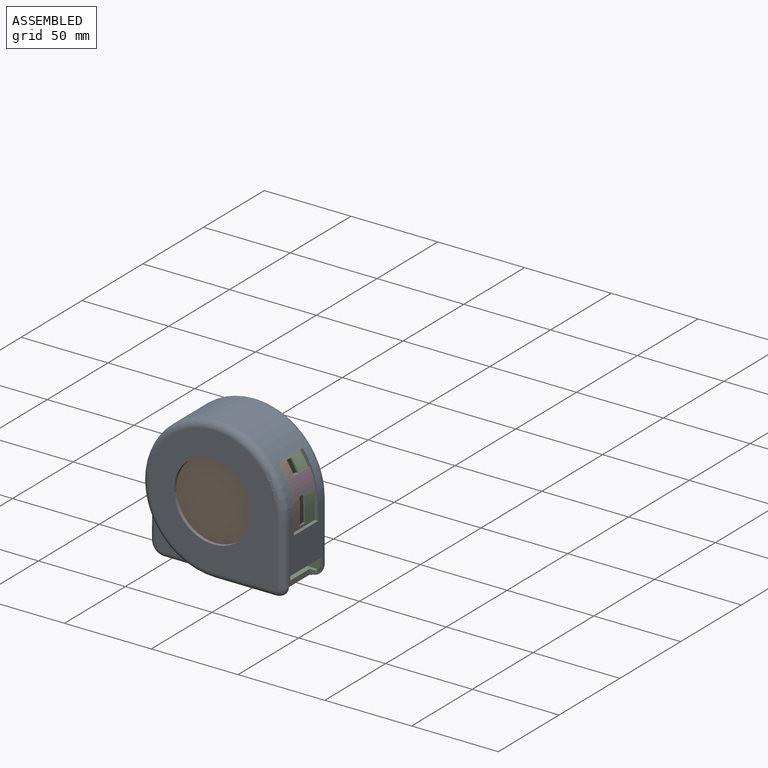
[diagram: assembled view]
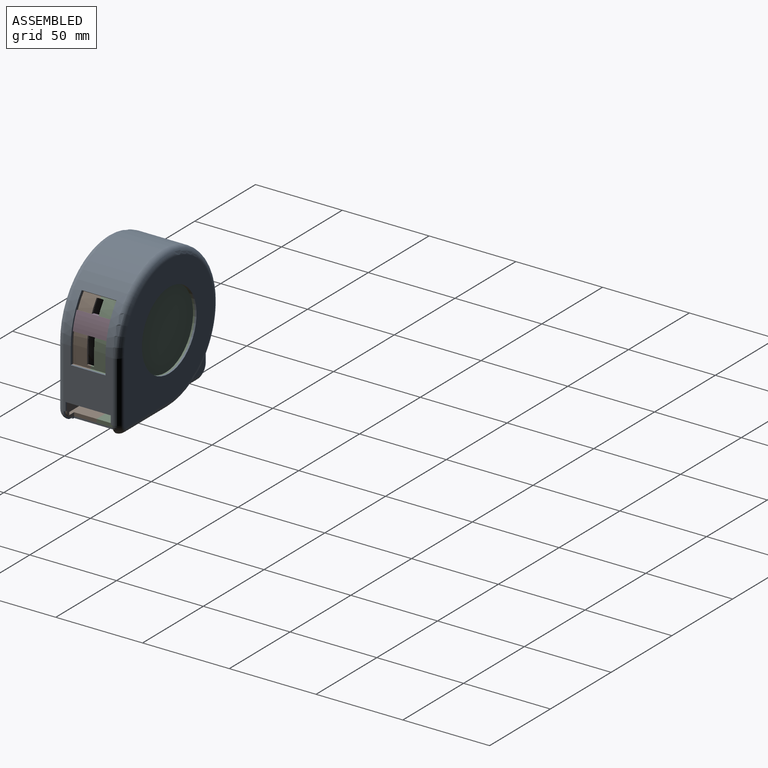
[diagram: assembled view, second angle]
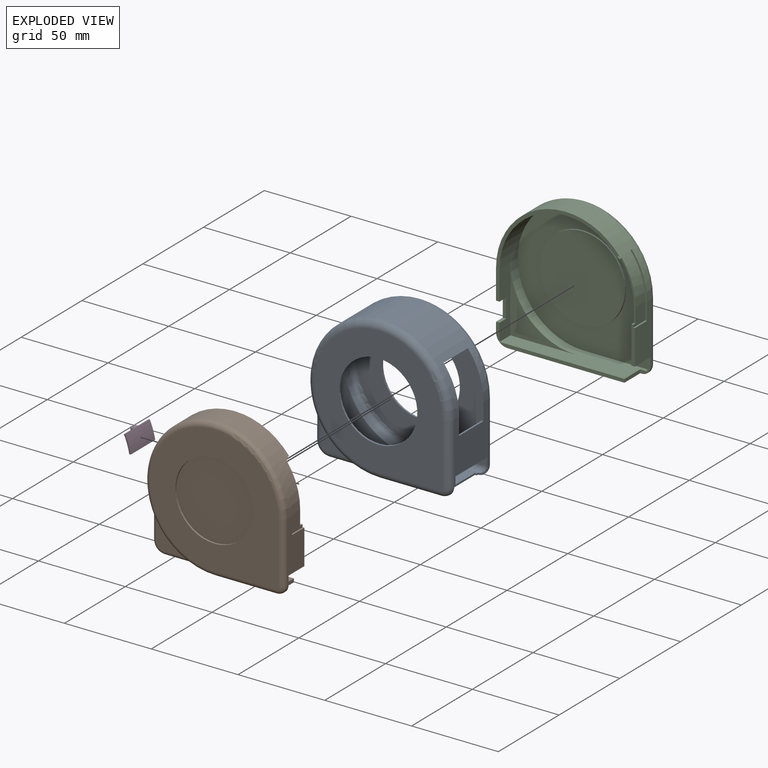
[diagram: exploded view]
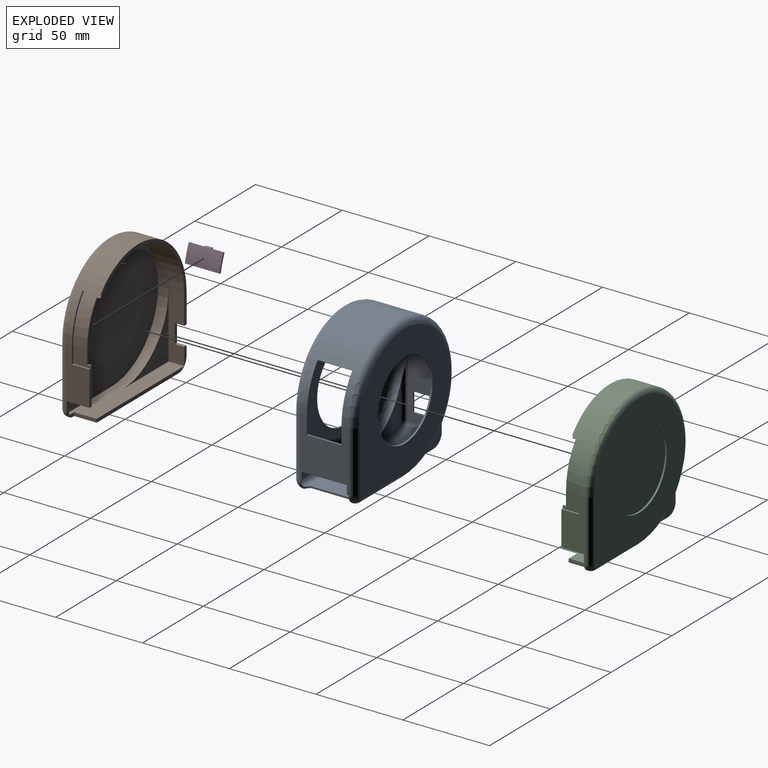
[diagram: exploded view, second angle]
ASSEMBLY  parts=4 mates=3
PART A: 68 faces, bbox 88.8x36x88.8 mm
  f0: plane 6x6mm, normal (0,-1,0), area 8.6mm2, adj f1,f12,f23,f37
  f1: plane 1x1mm, normal (1,0,0), area 1mm2, adj f0,f2,f25,f39
  f2: plane 1x1mm, normal (0,-1,0), area 1mm2, adj f1,f3,f25,f39
  f3: plane 26x1mm, normal (1,0,0), area 26mm2, adj f2,f25,f39,f44
  f4: plane 11x1mm, normal (0,0,1), area 11mm2, adj f5,f16,f30,f45
  f5: plane 11x1mm, normal (0,-1,0), area 11mm2, adj f4,f6,f16,f30
  f6: plane 11x1mm, normal (0,0,-1), area 11mm2, adj f5,f16,f30,f45
  f7: plane 20x0.78mm, normal (0.62,0,-0.78), area 20mm2, adj f8,f26,f40,f46
  f8: plane 35.63x9.78mm, normal (0,-1,0), area 37.3mm2, adj f7,f9,f21,f26,f35,f40
  f9: plane 20x1mm, normal (0,0,1), area 20mm2, adj f8,f21,f35,f46
  f10: plane 26x1mm, normal (0,0,-1), area 26mm2, adj f11,f21,f35,f47
  f11: plane 5x1mm, normal (0,-1,0), area 5mm2, adj f10,f12,f21,f35
  f12: plane 1x1mm, normal (0,0,-1), area 1mm2, adj f0,f11,f21,f35
  f13: cylinder r=22.5mm len=45mm, axis (0,1,0), area 141.4mm2, adj f14,f28
  f14: plane 74x74mm, normal (0,1,0), area 3003.3mm2, adj f13,f22,f23,f24,f27
  f15: cylinder r=7.7mm len=17.2mm, axis (0,1,0), area 208mm2, adj f16,f18,f25,f52
  f16: plane 33.3x17.2mm, normal (-1,0,0), area 451.8mm2, adj f4,f5,f6,f15,f19,f26,f45,f53
  f17: cylinder r=3.4mm len=33.3mm, axis (1,0,0), area 131.3mm2, adj f18,f20,f25,f26
  f18: torus R=4.3mm, axis (0,1,0), area 54.2mm2, adj f15,f17,f19,f20
  f19: cylinder r=3.4mm len=33.3mm, axis (0,0,-1), area 131.3mm2, adj f16,f18,f20,f26
  f20: plane 21.25x21.25mm, normal (0,1,0), area 164.3mm2, adj f17,f18,f19,f26
  f21: plane 35x28mm, normal (1,0,0), area 650mm2, adj f8,f9,f10,f11,f12,f22,f26,f46
  f22: cylinder r=4mm len=35mm, axis (0,0,1), area 219.9mm2, adj f14,f21,f23,f27
  f23: torus R=2mm, axis (0,1,0), area 44.9mm2, adj f0,f14,f22,f24
  f24: cylinder r=4mm len=35mm, axis (1,0,0), area 219.9mm2, adj f14,f23,f25,f27
  f25: plane 68.3x28mm, normal (0,0,-1), area 1526.8mm2, adj f1,f2,f3,f15,f17,f24,f26,f43
  f26: cylinder r=41mm len=82mm, axis (0,1,0), area 3399.4mm2, adj f7,f8,f16,f17,f19,f20,f21,f25
  f27: torus R=37mm, axis (0,1,0), area 1170.9mm2, adj f14,f22,f24,f26
  f28: plane 74x74mm, normal (0,-1,0), area 3003.3mm2, adj f13,f36,f37,f38,f41
  f29: cylinder r=6.7mm len=17.2mm, axis (0,1,0), area 181mm2, adj f30,f32,f39,f61
  f30: plane 33.3x17.2mm, normal (1,0,0), area 451.8mm2, adj f4,f5,f6,f29,f33,f40,f45,f62
  f31: cylinder r=2.4mm len=33.3mm, axis (1,0,0), area 98.2mm2, adj f32,f34,f39,f40
  f32: torus R=4.3mm, axis (0,1,0), area 34.5mm2, adj f29,f31,f33,f34
  f33: cylinder r=2.4mm len=33.3mm, axis (0,0,-1), area 98.2mm2, adj f30,f32,f34,f40
  f34: plane 23.95x23.95mm, normal (0,-1,0), area 197.1mm2, adj f31,f32,f33,f40
  f35: plane 35x28mm, normal (-1,0,0), area 650mm2, adj f8,f9,f10,f11,f12,f36,f40,f46
  f36: cylinder r=3mm len=35mm, axis (0,0,1), area 164.9mm2, adj f28,f35,f37,f41
  f37: torus R=2mm, axis (0,1,0), area 28.9mm2, adj f0,f28,f36,f38
  f38: cylinder r=3mm len=35mm, axis (1,0,0), area 164.9mm2, adj f28,f37,f39,f41
  f39: plane 68.3x28mm, normal (0,0,1), area 1526.8mm2, adj f1,f2,f3,f29,f31,f38,f40,f43
  f40: cylinder r=40mm len=80mm, axis (0,1,0), area 3407.5mm2, adj f7,f8,f30,f31,f33,f34,f35,f39
  f41: torus R=37mm, axis (0,1,0), area 864.1mm2, adj f28,f36,f38,f40
  f42: plane 6x6mm, normal (0,1,0), area 8.6mm2, adj f43,f48,f56,f65
  f43: plane 1x1mm, normal (1,0,0), area 1mm2, adj f25,f39,f42,f44
  f44: plane 1x1mm, normal (0,1,0), area 1mm2, adj f3,f25,f39,f43
  f45: plane 11x1mm, normal (0,1,0), area 11mm2, adj f4,f6,f16,f30
  f46: plane 35.63x9.78mm, normal (0,1,0), area 37.3mm2, adj f7,f9,f21,f26,f35,f40
  f47: plane 5x1mm, normal (0,1,0), area 5mm2, adj f10,f21,f35,f48
  f48: plane 1x1mm, normal (0,0,-1), area 1mm2, adj f21,f35,f42,f47
  f49: cylinder r=22.5mm len=45mm, axis (0,-1,0), area 141.4mm2, adj f50,f59
  f50: plane 74x74mm, normal (0,-1,0), area 3003.3mm2, adj f49,f55,f56,f57,f58
  f51: cylinder r=3.4mm len=33.3mm, axis (1,0,0), area 131.3mm2, adj f25,f26,f52,f54
  f52: torus R=4.3mm, axis (0,-1,0), area 54.2mm2, adj f15,f51,f53,f54
  f53: cylinder r=3.4mm len=33.3mm, axis (0,0,-1), area 131.3mm2, adj f16,f26,f52,f54
  f54: plane 21.25x21.25mm, normal (0,-1,0), area 164.3mm2, adj f26,f51,f52,f53
  f55: cylinder r=4mm len=35mm, axis (0,0,1), area 219.9mm2, adj f21,f50,f56,f58
  f56: torus R=2mm, axis (0,-1,0), area 44.9mm2, adj f42,f50,f55,f57
  f57: cylinder r=4mm len=35mm, axis (1,0,0), area 219.9mm2, adj f25,f50,f56,f58
  f58: torus R=37mm, axis (0,-1,0), area 1170.9mm2, adj f26,f50,f55,f57
  f59: plane 74x74mm, normal (0,1,0), area 3003.3mm2, adj f49,f64,f65,f66,f67
  f60: cylinder r=2.4mm len=33.3mm, axis (1,0,0), area 98.2mm2, adj f39,f40,f61,f63
  f61: torus R=4.3mm, axis (0,-1,0), area 34.5mm2, adj f29,f60,f62,f63
  f62: cylinder r=2.4mm len=33.3mm, axis (0,0,-1), area 98.2mm2, adj f30,f40,f61,f63
  f63: plane 23.95x23.95mm, normal (0,1,0), area 197.1mm2, adj f40,f60,f61,f62
  f64: cylinder r=3mm len=35mm, axis (0,0,1), area 164.9mm2, adj f35,f59,f65,f67
  f65: torus R=2mm, axis (0,-1,0), area 28.9mm2, adj f42,f59,f64,f66
  f66: cylinder r=3mm len=35mm, axis (1,0,0), area 164.9mm2, adj f39,f59,f65,f67
  f67: torus R=37mm, axis (0,-1,0), area 864.1mm2, adj f40,f59,f64,f66
PART B: 42 faces, bbox 86.6x17x86.6 mm
  f0: plane 74x74mm, normal (0,-1,0), area 3003.3mm2, adj f12,f20,f21,f22,f41
  f1: plane 71.23x57mm, normal (0,1,0), area 226.7mm2, adj f2,f3,f5,f15,f29,f30,f34,f37
  f2: plane 33.3x8.6mm, normal (-1,0,0), area 225.9mm2, adj f1,f4,f5,f19,f23,f37,f38,f39
  f3: plane 38x9mm, normal (1,0,0), area 281.5mm2, adj f1,f4,f9,f15,f16,f37,f38,f39
  f4: plane 74x12mm, normal (0,1,0), area 158.4mm2, adj f2,f3,f7,f9,f19,f26,f38
  f5: cylinder r=40mm len=80mm, axis (0,-1,0), area 1703.8mm2, adj f1,f2,f6,f7,f11,f20,f23,f24
  f6: plane 35x14mm, normal (1,0,0), area 325mm2, adj f5,f8,f21,f27,f28,f31,f33,f40
  f7: plane 68.3x14mm, normal (0,0,-1), area 763.4mm2, adj f4,f5,f19,f22,f24,f26,f28,f40
  f8: plane 21.5x2mm, normal (0,1,0), area 41.5mm2, adj f6,f10,f27,f31,f32,f36
  f9: plane 76x15mm, normal (0,0,1), area 860mm2, adj f3,f4,f10,f14,f15,f16,f26,f28
  f10: plane 38x15mm, normal (-1,0,0), area 449mm2, adj f8,f9,f14,f15,f27,f28,f35,f36
  f11: plane 23.95x23.95mm, normal (0,-1,0), area 197.1mm2, adj f5,f23,f24,f25
  f12: cylinder r=22.5mm len=45mm, axis (0,-1,0), area 141.4mm2, adj f0,f13
  f13: plane 45x45mm, normal (0,-1,0), area 1590.4mm2, adj f12
  f14: plane 76x76mm, normal (0,1,0), area 2960.6mm2, adj f9,f10,f15,f17
  f15: cylinder r=38mm len=76mm, axis (0,-1,0), area 2098.2mm2, adj f1,f3,f9,f10,f14,f16,f34,f35
  f16: plane 38x38mm, normal (0,1,0), area 309.9mm2, adj f3,f9,f15
  f17: cylinder r=24.5mm len=49mm, axis (0,-1,0), area 153.9mm2, adj f14,f18
  f18: plane 49x49mm, normal (0,1,0), area 1885.7mm2, adj f17
  f19: cylinder r=6.7mm len=8.6mm, axis (0,-1,0), area 90.5mm2, adj f2,f4,f7,f25
  f20: torus R=37mm, axis (0,-1,0), area 864.1mm2, adj f0,f5,f21,f22
  f21: cylinder r=3mm len=35mm, axis (0,0,1), area 164.9mm2, adj f0,f6,f20,f41
  f22: cylinder r=3mm len=35mm, axis (1,0,0), area 164.9mm2, adj f0,f7,f20,f41
  f23: cylinder r=2.4mm len=33.3mm, axis (0,0,-1), area 98.2mm2, adj f2,f5,f11,f25
  f24: cylinder r=2.4mm len=33.3mm, axis (1,0,0), area 98.2mm2, adj f5,f7,f11,f25
  f25: torus R=4.3mm, axis (0,-1,0), area 34.5mm2, adj f11,f19,f23,f24
  f26: plane 13x2mm, normal (1,0,0), area 26mm2, adj f4,f7,f9,f28
  f27: plane 13x2mm, normal (0,0,-1), area 26mm2, adj f6,f8,f10,f28
  f28: plane 10x6mm, normal (0,1,0), area 22.6mm2, adj f6,f7,f9,f10,f26,f27,f40
  f29: cylinder r=39mm len=25mm, axis (0,1,0), area 220.9mm2, adj f1,f30,f32,f33,f34,f35
  f30: plane 10x1.29mm, normal (0,0,-1), area 12.9mm2, adj f1,f5,f29,f33
  f31: plane 10x1mm, normal (0,0,1), area 10mm2, adj f6,f8,f32,f33
  f32: plane 10x10mm, normal (1,0,0), area 83mm2, adj f8,f29,f31,f33,f35,f36
  f33: plane 35x10.07mm, normal (0,1,0), area 37.1mm2, adj f5,f6,f29,f30,f31,f32
  f34: plane 2x1.26mm, normal (0,0,-1), area 2.5mm2, adj f1,f15,f29,f35
  f35: plane 32x9.14mm, normal (0,1,0), area 33.8mm2, adj f10,f15,f29,f32,f34,f36
  f36: plane 2x1mm, normal (0,0,1), area 2mm2, adj f8,f10,f32,f35
  f37: plane 5.5x2mm, normal (0,0,-1), area 11mm2, adj f1,f2,f3,f39
  f38: plane 5.5x2mm, normal (0,0,1), area 11mm2, adj f2,f3,f4,f39
  f39: plane 11x2mm, normal (0,1,0), area 22mm2, adj f2,f3,f37,f38
  f40: cylinder r=5mm len=5mm, axis (0,1,0), area 7.9mm2, adj f6,f7,f28,f41
  f41: torus R=2mm, axis (0,-1,0), area 28.9mm2, adj f0,f21,f22,f40
PART C: 42 faces, bbox 86.6x17x86.6 mm
  f0: plane 74x74mm, normal (0,1,0), area 3003.3mm2, adj f13,f21,f22,f23,f41
  f1: plane 71.23x57mm, normal (0,-1,0), area 226.7mm2, adj f2,f3,f5,f6,f10,f30,f34,f37
  f2: plane 33.3x8.6mm, normal (-1,0,0), area 225.9mm2, adj f1,f4,f10,f20,f24,f37,f38,f39
  f3: plane 38x9mm, normal (1,0,0), area 281.5mm2, adj f1,f4,f5,f16,f17,f37,f38,f39
  f4: plane 74x12mm, normal (0,-1,0), area 158.4mm2, adj f2,f3,f7,f16,f20,f27,f39
  f5: cylinder r=38mm len=76mm, axis (0,1,0), area 2098.2mm2, adj f1,f3,f9,f15,f16,f17,f34,f35
  f6: cylinder r=39mm len=25mm, axis (0,1,0), area 220.9mm2, adj f1,f30,f32,f33,f34,f35
  f7: plane 68.3x14mm, normal (0,0,-1), area 763.4mm2, adj f4,f10,f20,f23,f25,f27,f29,f40
  f8: plane 21.5x2mm, normal (0,-1,0), area 41.5mm2, adj f9,f11,f28,f31,f32,f36
  f9: plane 38x15mm, normal (-1,0,0), area 449mm2, adj f5,f8,f15,f16,f28,f29,f35,f36
  f10: cylinder r=40mm len=80mm, axis (0,1,0), area 1703.8mm2, adj f1,f2,f7,f11,f12,f21,f24,f25
  f11: plane 35x14mm, normal (1,0,0), area 325mm2, adj f8,f10,f22,f28,f29,f31,f33,f40
  f12: plane 23.95x23.95mm, normal (0,1,0), area 197.1mm2, adj f10,f24,f25,f26
  f13: cylinder r=22.5mm len=45mm, axis (0,1,0), area 141.4mm2, adj f0,f14
  f14: plane 45x45mm, normal (0,1,0), area 1590.4mm2, adj f13
  f15: plane 76x76mm, normal (0,-1,0), area 2960.6mm2, adj f5,f9,f16,f18
  f16: plane 76x15mm, normal (0,0,1), area 860mm2, adj f3,f4,f5,f9,f15,f17,f27,f29
  f17: plane 38x38mm, normal (0,-1,0), area 309.9mm2, adj f3,f5,f16
  f18: cylinder r=24.5mm len=49mm, axis (0,1,0), area 153.9mm2, adj f15,f19
  f19: plane 49x49mm, normal (0,-1,0), area 1885.7mm2, adj f18
  f20: cylinder r=6.7mm len=8.6mm, axis (0,1,0), area 90.5mm2, adj f2,f4,f7,f26
  f21: torus R=37mm, axis (0,1,0), area 864.1mm2, adj f0,f10,f22,f23
  f22: cylinder r=3mm len=35mm, axis (0,0,1), area 164.9mm2, adj f0,f11,f21,f41
  f23: cylinder r=3mm len=35mm, axis (1,0,0), area 164.9mm2, adj f0,f7,f21,f41
  f24: cylinder r=2.4mm len=33.3mm, axis (0,0,-1), area 98.2mm2, adj f2,f10,f12,f26
  f25: cylinder r=2.4mm len=33.3mm, axis (1,0,0), area 98.2mm2, adj f7,f10,f12,f26
  f26: torus R=4.3mm, axis (0,1,0), area 34.5mm2, adj f12,f20,f24,f25
  f27: plane 13x2mm, normal (1,0,0), area 26mm2, adj f4,f7,f16,f29
  f28: plane 13x2mm, normal (0,0,-1), area 26mm2, adj f8,f9,f11,f29
  f29: plane 10x6mm, normal (0,-1,0), area 22.6mm2, adj f7,f9,f11,f16,f27,f28,f40
  f30: plane 10x1.29mm, normal (0,0,-1), area 12.9mm2, adj f1,f6,f10,f33
  f31: plane 10x1mm, normal (0,0,1), area 10mm2, adj f8,f11,f32,f33
  f32: plane 10x10mm, normal (1,0,0), area 83mm2, adj f6,f8,f31,f33,f35,f36
  f33: plane 35x10.07mm, normal (0,-1,0), area 37.1mm2, adj f6,f10,f11,f30,f31,f32
  f34: plane 2x1.26mm, normal (0,0,-1), area 2.5mm2, adj f1,f5,f6,f35
  f35: plane 32x9.14mm, normal (0,-1,0), area 33.8mm2, adj f5,f6,f9,f32,f34,f36
  f36: plane 2x1mm, normal (0,0,1), area 2mm2, adj f8,f9,f32,f35
  f37: plane 5.5x2mm, normal (0,0,-1), area 11mm2, adj f1,f2,f3,f38
  f38: plane 11x2mm, normal (0,-1,0), area 22mm2, adj f2,f3,f37,f39
  f39: plane 5.5x2mm, normal (0,0,1), area 11mm2, adj f2,f3,f4,f38
  f40: cylinder r=5mm len=5mm, axis (0,-1,0), area 7.9mm2, adj f7,f11,f29,f41
  f41: torus R=2mm, axis (0,1,0), area 28.9mm2, adj f0,f22,f23,f40
PART D: 11 faces, bbox 7.5x20x10.7 mm
  f0: cylinder r=39mm len=9.03mm, axis (0,-1,0), area 81.7mm2, adj f2,f4,f6,f10
  f1: cylinder r=40mm len=20mm, axis (0,-1,0), area 209.4mm2, adj f2,f4,f5,f6
  f2: plane 20x4.03mm, normal (0.34,0,-0.94), area 33.2mm2, adj f0,f1,f3,f5,f6,f7,f8,f10
  f3: cylinder r=39mm len=9.03mm, axis (0,-1,0), area 81.7mm2, adj f2,f4,f5,f7
  f4: plane 20x0.82mm, normal (-0.57,0,0.82), area 20mm2, adj f0,f1,f3,f5,f6,f9
  f5: plane 9.6x5.64mm, normal (0,1,0), area 10.3mm2, adj f1,f2,f3,f4
  f6: plane 9.6x5.64mm, normal (0,-1,0), area 10.3mm2, adj f0,f1,f2,f4
  f7: plane 10.16x6.55mm, normal (0,1,0), area 28.8mm2, adj f2,f3,f8,f9
  f8: plane 9.49x4mm, normal (-0.94,0,-0.34), area 40.4mm2, adj f2,f7,f9,f10
  f9: plane 4x1.84mm, normal (-0.34,0,0.94), area 7.9mm2, adj f4,f7,f8,f10
  f10: plane 10.16x6.55mm, normal (0,-1,0), area 28.8mm2, adj f0,f2,f8,f9
PLACE A t=(-18.09,-22.31,7.69)mm
PLACE B t=(-18.09,-22.31,7.69)mm
PLACE C t=(-18.09,-22.31,7.69)mm fixed
PLACE D rot(axis=(0,1,0),9.8deg) t=(-18.09,-22.31,7.69)mm
MATE revolute D.f0 <-> B.f5  axis (0,1,0) through (-18.09,-5.31,7.69)mm
MATE fastened A.f26 <-> C.f5  axis (0,1,0) through (-18.09,-5.31,7.69)mm
MATE fastened C.f5 <-> B.f5  axis (0,-1,0) through (-18.09,-5.31,7.69)mm
